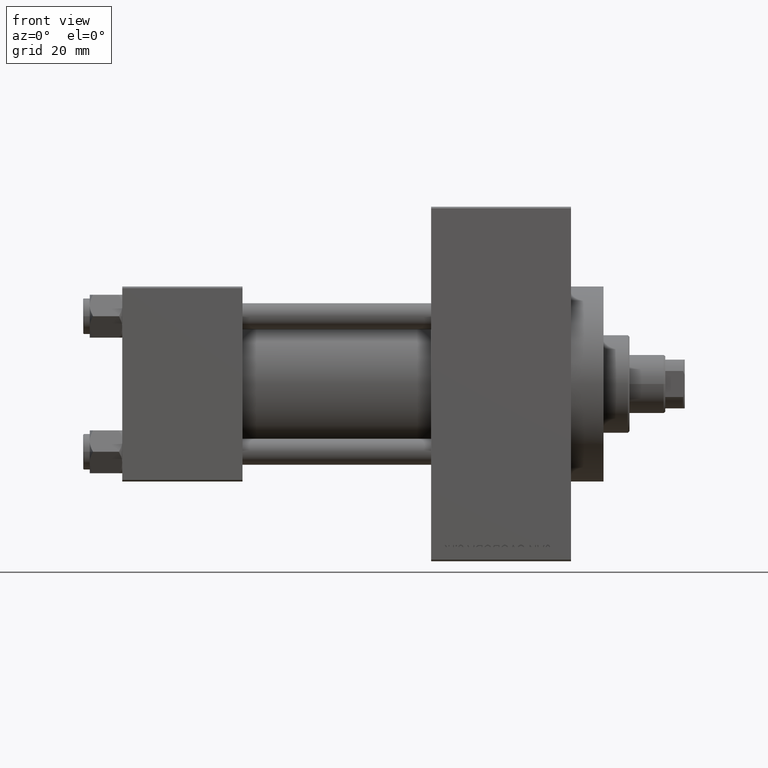
[diagram: clean part render]
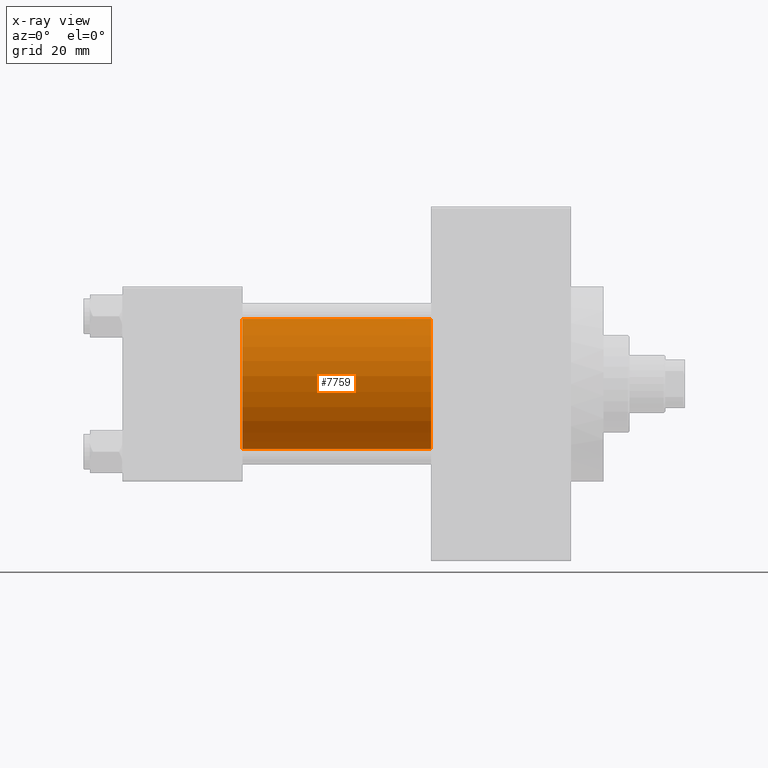
[diagram: x-ray — body ghosted, one internal face saturated and labeled with its STEP entity id]
A machine part, front view, then the same camera in x-ray: the body is ghosted and one INTERNAL B-rep face — a face not visible from any outside direction — is saturated and labeled: STEP entity #7759.
In plain terms, the highlighted cylindrical surface (partial cylindrical patch) has radius 20 mm, axis along (-1, -0, -0).
Its self-contained STEP definition (entity closure, byte-faithful):
#3574 = DIRECTION ( 'NONE',  ( -1.000000000000000000, -0.000000000000000000, -0.000000000000000000 ) ) ;
#6144 = EDGE_CURVE ( 'NONE', #10592, #6431, #29956, .T. ) ;
#6431 = VERTEX_POINT ( 'NONE', #23950 ) ;
#7759 = ADVANCED_FACE ( 'NONE', ( #35497 ), #20596, .F. ) ;
#8409 = EDGE_CURVE ( 'NONE', #10592, #39766, #12923, .T. ) ;
#9674 = CARTESIAN_POINT ( 'NONE',  ( 95.00000000000000000, -2.602085213965210642E-15, 20.00000000000000000 ) ) ;
#10111 = DIRECTION ( 'NONE',  ( 1.000000000000000000, 0.000000000000000000, 0.000000000000000000 ) ) ;
#10482 = EDGE_CURVE ( 'NONE', #6431, #37556, #10822, .T. ) ;
#10592 = VERTEX_POINT ( 'NONE', #20534 ) ;
#10822 = LINE ( 'NONE', #40466, #14114 ) ;
#11541 = DIRECTION ( 'NONE',  ( 1.000000000000000000, 0.000000000000000000, 0.000000000000000000 ) ) ;
#12923 = LINE ( 'NONE', #9674, #49030 ) ;
#14114 = VECTOR ( 'NONE', #3574, 1000.000000000000000 ) ;
#14348 = ORIENTED_EDGE ( 'NONE', *, *, #6144, .T. ) ;
#16258 = EDGE_LOOP ( 'NONE', ( #14348, #16997, #37862, #33708 ) ) ;
#16588 = CARTESIAN_POINT ( 'NONE',  ( 95.00000000000000000, -2.602085213965210642E-15, 0.000000000000000000 ) ) ;
#16997 = ORIENTED_EDGE ( 'NONE', *, *, #10482, .T. ) ;
#18963 = CARTESIAN_POINT ( 'NONE',  ( 37.00000000000000000, -2.602085213965210642E-15, 20.00000000000000000 ) ) ;
#20534 = CARTESIAN_POINT ( 'NONE',  ( 95.00000000000000000, -2.602085213965210642E-15, 20.00000000000000000 ) ) ;
#20596 = CYLINDRICAL_SURFACE ( 'NONE', #27483, 20.00000000000000000 ) ;
#23950 = CARTESIAN_POINT ( 'NONE',  ( 95.00000000000000000, -1.527916156705046464E-16, -20.00000000000000000 ) ) ;
#25298 = DIRECTION ( 'NONE',  ( 0.000000000000000000, 0.000000000000000000, -1.000000000000000000 ) ) ;
#25583 = CIRCLE ( 'NONE', #43865, 20.00000000000000000 ) ;
#27483 = AXIS2_PLACEMENT_3D ( 'NONE', #16588, #47236, #43233 ) ;
#29956 = CIRCLE ( 'NONE', #38572, 20.00000000000000000 ) ;
#33708 = ORIENTED_EDGE ( 'NONE', *, *, #8409, .F. ) ;
#35497 = FACE_OUTER_BOUND ( 'NONE', #16258, .T. ) ;
#37556 = VERTEX_POINT ( 'NONE', #44942 ) ;
#37862 = ORIENTED_EDGE ( 'NONE', *, *, #45999, .F. ) ;
#38572 = AXIS2_PLACEMENT_3D ( 'NONE', #44230, #10111, #25298 ) ;
#39766 = VERTEX_POINT ( 'NONE', #18963 ) ;
#40466 = CARTESIAN_POINT ( 'NONE',  ( 95.00000000000000000, -1.527916156705046464E-16, -20.00000000000000000 ) ) ;
#41189 = CARTESIAN_POINT ( 'NONE',  ( 37.00000000000000000, -2.602085213965210642E-15, 0.000000000000000000 ) ) ;
#43233 = DIRECTION ( 'NONE',  ( 0.000000000000000000, 0.000000000000000000, 1.000000000000000000 ) ) ;
#43865 = AXIS2_PLACEMENT_3D ( 'NONE', #41189, #11541, #44692 ) ;
#44230 = CARTESIAN_POINT ( 'NONE',  ( 95.00000000000000000, -2.602085213965210642E-15, 0.000000000000000000 ) ) ;
#44692 = DIRECTION ( 'NONE',  ( 0.000000000000000000, 0.000000000000000000, -1.000000000000000000 ) ) ;
#44942 = CARTESIAN_POINT ( 'NONE',  ( 37.00000000000000000, -1.527916156705046464E-16, -20.00000000000000000 ) ) ;
#45999 = EDGE_CURVE ( 'NONE', #39766, #37556, #25583, .T. ) ;
#47044 = DIRECTION ( 'NONE',  ( -1.000000000000000000, -0.000000000000000000, -0.000000000000000000 ) ) ;
#47236 = DIRECTION ( 'NONE',  ( -1.000000000000000000, -0.000000000000000000, -0.000000000000000000 ) ) ;
#49030 = VECTOR ( 'NONE', #47044, 1000.000000000000000 ) ;